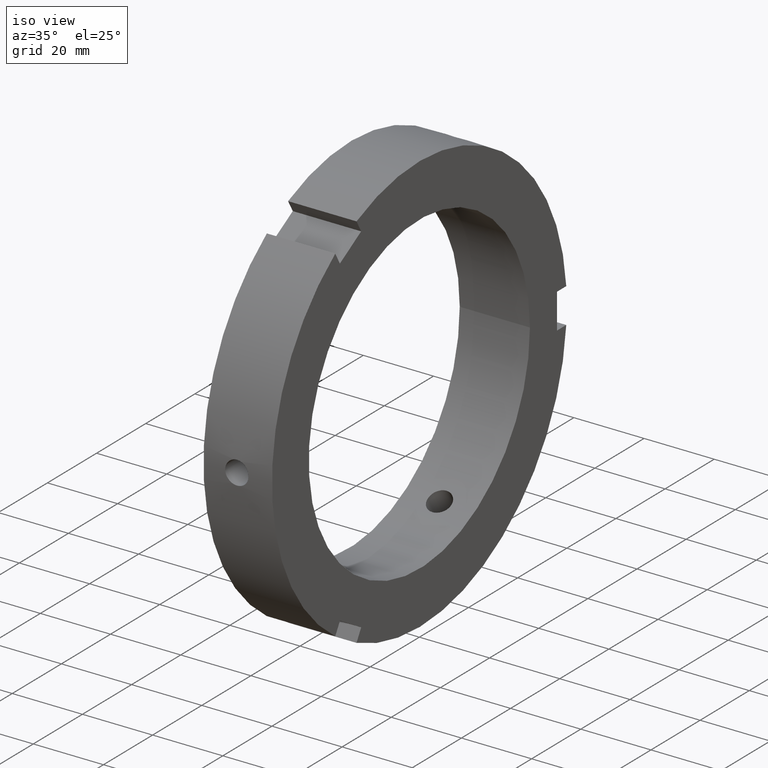
[diagram: clean part render]
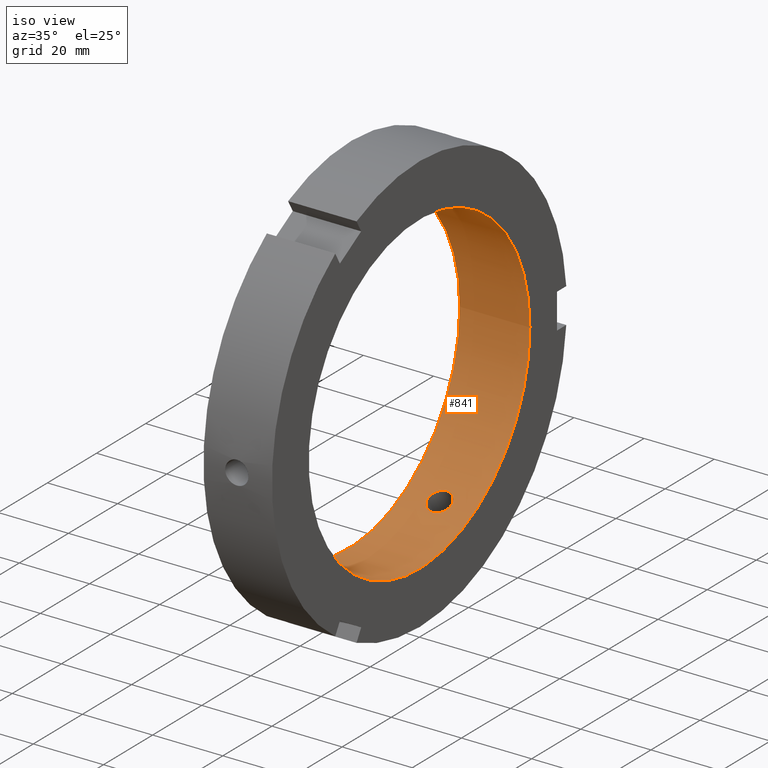
[diagram: same view with one face highlighted and labeled with its STEP entity id]
A machine part, iso view. The second image highlights one B-rep face of the part: STEP entity #841.
In plain terms, the highlighted cylindrical surface (bore or boss wall) has radius 45 mm, axis along (1, 0, 0).
Its self-contained STEP definition (entity closure, byte-faithful):
#216=CARTESIAN_POINT('',(9.999999999999986,25.316786785068718,37.202960996127310));
#217=VERTEX_POINT('',#216);
#218=CARTESIAN_POINT('',(9.999999999999986,25.316786785068714,37.202960996127310));
#219=CARTESIAN_POINT('',(9.582530619987612,25.316786785068714,37.202960996127310));
#220=CARTESIAN_POINT('',(9.137338953354645,25.247718650879069,37.250256448862046));
#221=CARTESIAN_POINT('',(8.318542322400832,24.965543185196580,37.439959347999235));
#222=CARTESIAN_POINT('',(7.944924425362558,24.752275240378047,37.582071919444786));
#223=CARTESIAN_POINT('',(7.354937097566673,24.256757957319159,37.903785464750072));
#224=CARTESIAN_POINT('',(7.099185124343489,23.941405023497900,38.104814219449985));
#225=CARTESIAN_POINT('',(6.759962374178269,23.243883462388460,38.534265566933684));
#226=CARTESIAN_POINT('',(6.676499999999985,22.861538723811350,38.762408690784767));
#227=CARTESIAN_POINT('',(6.676499999999987,22.138461276188657,39.179877649814678));
#228=CARTESIAN_POINT('',(6.759962374178272,21.749711165946319,39.396926344500230));
#229=CARTESIAN_POINT('',(7.099185124343497,21.029034608781267,39.786272062366528));
#230=CARTESIAN_POINT('',(7.354937097566674,20.697262133409367,39.958861336863748));
#231=CARTESIAN_POINT('',(7.944924425362556,20.170891388903989,40.227135119354344));
#232=CARTESIAN_POINT('',(8.318542322400830,19.941184319425751,40.340774291657311));
#233=CARTESIAN_POINT('',(9.137338953354643,19.635809056760142,40.490293963694455));
#234=CARTESIAN_POINT('',(9.582530619987614,19.560315926113560,40.526460996127312));
#235=CARTESIAN_POINT('',(10.417469380012360,19.560315926113560,40.526460996127312));
#236=CARTESIAN_POINT('',(10.862661046645330,19.635809056760138,40.490293963694455));
#237=CARTESIAN_POINT('',(11.681457677599143,19.941184319425751,40.340774291657311));
#238=CARTESIAN_POINT('',(12.055075574637417,20.170891388903989,40.227135119354344));
#239=CARTESIAN_POINT('',(12.645062902433303,20.697262133409367,39.958861336863748));
#240=CARTESIAN_POINT('',(12.900814875656474,21.029034608781274,39.786272062366528));
#241=CARTESIAN_POINT('',(13.240037625821699,21.749711165946319,39.396926344500230));
#242=CARTESIAN_POINT('',(13.323499999999985,22.138461276188654,39.179877649814678));
#243=CARTESIAN_POINT('',(13.323499999999985,22.861538723811350,38.762408690784767));
#244=CARTESIAN_POINT('',(13.240037625821707,23.243883462388460,38.534265566933676));
#245=CARTESIAN_POINT('',(12.900814875656486,23.941405023497900,38.104814219449985));
#246=CARTESIAN_POINT('',(12.645062902433303,24.256757957319159,37.903785464750072));
#247=CARTESIAN_POINT('',(12.055075574637417,24.752275240378047,37.582071919444786));
#248=CARTESIAN_POINT('',(11.681457677599145,24.965543185196580,37.439959347999235));
#249=CARTESIAN_POINT('',(10.862661046645330,25.247718650879069,37.250256448862046));
#250=CARTESIAN_POINT('',(10.417469380012360,25.316786785068714,37.202960996127310));
#251=CARTESIAN_POINT('',(9.999999999999986,25.316786785068714,37.202960996127310));
#252=B_SPLINE_CURVE_WITH_KNOTS('',3,(#218,#219,#220,#221,#222,#223,#224,#225,#226,#227,#228,#229,#230,#231,#232,#233,#234,#235,#236,#237,#238,#239,#240,#241,#242,#243,#244,#245,#246,#247,#248,#249,#250,#251),.UNSPECIFIED.,.T.,.U.,(4,2,2,2,2,2,2,2,2,2,2,2,2,2,2,2,4),(0.0,0.125240814003712,0.250481628007424,0.375722315716397,0.500963003425370,0.626203691134343,0.751444378843316,0.876685192847028,1.001926006850740,1.127166820854451,1.252407634858163,1.377648322567136,1.502889010276109,1.628129697985082,1.753370385694055,1.878611199697767,2.003852013701479),.UNSPECIFIED.);
#253=EDGE_CURVE('',#217,#217,#252,.T.);
#406=CARTESIAN_POINT('',(9.999999999999986,19.560315926113525,-40.526460996127327));
#407=VERTEX_POINT('',#406);
#408=CARTESIAN_POINT('',(9.999999999999986,19.560315926113521,-40.526460996127334));
#409=CARTESIAN_POINT('',(9.582530619987612,19.560315926113521,-40.526460996127334));
#410=CARTESIAN_POINT('',(9.137338953354648,19.635809056760113,-40.490293963694477));
#411=CARTESIAN_POINT('',(8.318542322400832,19.941184319425727,-40.340774291657333));
#412=CARTESIAN_POINT('',(7.944924425362558,20.170891388903975,-40.227135119354365));
#413=CARTESIAN_POINT('',(7.354937097566676,20.697262133409353,-39.958861336863770));
#414=CARTESIAN_POINT('',(7.099185124343487,21.029034608781249,-39.786272062366542));
#415=CARTESIAN_POINT('',(6.759962374178268,21.749711165946302,-39.396926344500244));
#416=CARTESIAN_POINT('',(6.676499999999987,22.138461276188643,-39.179877649814699));
#417=CARTESIAN_POINT('',(6.676499999999987,22.861538723811343,-38.762408690784795));
#418=CARTESIAN_POINT('',(6.759962374178269,23.243883462388442,-38.534265566933698));
#419=CARTESIAN_POINT('',(7.099185124343494,23.941405023497879,-38.104814219449999));
#420=CARTESIAN_POINT('',(7.354937097566674,24.256757957319145,-37.903785464750108));
#421=CARTESIAN_POINT('',(7.944924425362561,24.752275240378037,-37.582071919444822));
#422=CARTESIAN_POINT('',(8.318542322400836,24.965543185196559,-37.439959347999263));
#423=CARTESIAN_POINT('',(9.137338953354652,25.247718650879047,-37.250256448862075));
#424=CARTESIAN_POINT('',(9.582530619987612,25.316786785068700,-37.202960996127324));
#425=CARTESIAN_POINT('',(10.417469380012360,25.316786785068700,-37.202960996127324));
#426=CARTESIAN_POINT('',(10.862661046645323,25.247718650879044,-37.250256448862075));
#427=CARTESIAN_POINT('',(11.681457677599138,24.965543185196552,-37.439959347999263));
#428=CARTESIAN_POINT('',(12.055075574637414,24.752275240378037,-37.582071919444822));
#429=CARTESIAN_POINT('',(12.645062902433297,24.256757957319145,-37.903785464750108));
#430=CARTESIAN_POINT('',(12.900814875656479,23.941405023497879,-38.104814219449999));
#431=CARTESIAN_POINT('',(13.240037625821703,23.243883462388442,-38.534265566933698));
#432=CARTESIAN_POINT('',(13.323499999999985,22.861538723811336,-38.762408690784795));
#433=CARTESIAN_POINT('',(13.323499999999985,22.138461276188647,-39.179877649814699));
#434=CARTESIAN_POINT('',(13.240037625821707,21.749711165946302,-39.396926344500244));
#435=CARTESIAN_POINT('',(12.900814875656488,21.029034608781249,-39.786272062366542));
#436=CARTESIAN_POINT('',(12.645062902433299,20.697262133409353,-39.958861336863770));
#437=CARTESIAN_POINT('',(12.055075574637417,20.170891388903975,-40.227135119354365));
#438=CARTESIAN_POINT('',(11.681457677599141,19.941184319425723,-40.340774291657333));
#439=CARTESIAN_POINT('',(10.862661046645325,19.635809056760113,-40.490293963694477));
#440=CARTESIAN_POINT('',(10.417469380012358,19.560315926113518,-40.526460996127334));
#441=CARTESIAN_POINT('',(9.999999999999984,19.560315926113518,-40.526460996127334));
#442=B_SPLINE_CURVE_WITH_KNOTS('',3,(#408,#409,#410,#411,#412,#413,#414,#415,#416,#417,#418,#419,#420,#421,#422,#423,#424,#425,#426,#427,#428,#429,#430,#431,#432,#433,#434,#435,#436,#437,#438,#439,#440,#441),.UNSPECIFIED.,.T.,.U.,(4,2,2,2,2,2,2,2,2,2,2,2,2,2,2,2,4),(0.0,0.125240814003712,0.250481628007424,0.375722315716397,0.500963003425370,0.626203691134343,0.751444378843316,0.876685192847028,1.001926006850741,1.127166820854453,1.252407634858165,1.377648322567138,1.502889010276111,1.628129697985083,1.753370385694056,1.878611199697768,2.003852013701481),.UNSPECIFIED.);
#443=EDGE_CURVE('',#407,#407,#442,.T.);
#508=CARTESIAN_POINT('',(19.999999999999993,45.0,0.0));
#509=VERTEX_POINT('',#508);
#510=CARTESIAN_POINT('',(19.999999999999993,0.0,0.0));
#511=DIRECTION('',(1.0,0.0,0.0));
#512=DIRECTION('',(0.0,1.0,0.0));
#513=AXIS2_PLACEMENT_3D('',#510,#511,#512);
#514=CIRCLE('',#513,45.0);
#515=EDGE_CURVE('',#509,#509,#514,.T.);
#643=CARTESIAN_POINT('',(9.999999999999986,-44.877102711182232,3.323500000000000));
#644=VERTEX_POINT('',#643);
#645=CARTESIAN_POINT('',(9.999999999999986,-44.877102711182239,3.323500000000000));
#646=CARTESIAN_POINT('',(9.582530619987612,-44.877102711182239,3.323500000000000));
#647=CARTESIAN_POINT('',(9.137338953354647,-44.883527707639182,3.240037514832411));
#648=CARTESIAN_POINT('',(8.318542322400832,-44.906727504622303,2.900814943658070));
#649=CARTESIAN_POINT('',(7.944924425362558,-44.923166629282029,2.645063199909553));
#650=CARTESIAN_POINT('',(7.354937097566674,-44.954020090728513,2.055075872113669));
#651=CARTESIAN_POINT('',(7.099185124343493,-44.970439632279138,1.681457842916545));
#652=CARTESIAN_POINT('',(6.759962374178269,-44.993594628334755,0.862660777566548));
#653=CARTESIAN_POINT('',(6.676499999999987,-45.0,0.417468959029910));
#654=CARTESIAN_POINT('',(6.676499999999987,-45.0,-0.417468959029910));
#655=CARTESIAN_POINT('',(6.759962374178270,-44.993594628334755,-0.862660777566549));
#656=CARTESIAN_POINT('',(7.099185124343493,-44.970439632279138,-1.681457842916545));
#657=CARTESIAN_POINT('',(7.354937097566674,-44.954020090728513,-2.055075872113669));
#658=CARTESIAN_POINT('',(7.944924425362558,-44.923166629282029,-2.645063199909553));
#659=CARTESIAN_POINT('',(8.318542322400832,-44.906727504622303,-2.900814943658070));
#660=CARTESIAN_POINT('',(9.137338953354647,-44.883527707639182,-3.240037514832411));
#661=CARTESIAN_POINT('',(9.582530619987614,-44.877102711182239,-3.323500000000000));
#662=CARTESIAN_POINT('',(10.417469380012360,-44.877102711182239,-3.323500000000000));
#663=CARTESIAN_POINT('',(10.862661046645323,-44.883527707639182,-3.240037514832410));
#664=CARTESIAN_POINT('',(11.681457677599138,-44.906727504622303,-2.900814943658071));
#665=CARTESIAN_POINT('',(12.055075574637414,-44.923166629282029,-2.645063199909554));
#666=CARTESIAN_POINT('',(12.645062902433297,-44.954020090728513,-2.055075872113669));
#667=CARTESIAN_POINT('',(12.900814875656481,-44.970439632279138,-1.681457842916546));
#668=CARTESIAN_POINT('',(13.240037625821707,-44.993594628334755,-0.862660777566549));
#669=CARTESIAN_POINT('',(13.323499999999985,-45.0,-0.417468959029911));
#670=CARTESIAN_POINT('',(13.323499999999985,-45.0,0.417468959029910));
#671=CARTESIAN_POINT('',(13.240037625821707,-44.993594628334755,0.862660777566548));
#672=CARTESIAN_POINT('',(12.900814875656481,-44.970439632279138,1.681457842916545));
#673=CARTESIAN_POINT('',(12.645062902433303,-44.954020090728513,2.055075872113669));
#674=CARTESIAN_POINT('',(12.055075574637417,-44.923166629282029,2.645063199909553));
#675=CARTESIAN_POINT('',(11.681457677599145,-44.906727504622303,2.900814943658069));
#676=CARTESIAN_POINT('',(10.862661046645330,-44.883527707639182,3.240037514832410));
#677=CARTESIAN_POINT('',(10.417469380012360,-44.877102711182239,3.323500000000000));
#678=CARTESIAN_POINT('',(9.999999999999986,-44.877102711182239,3.323500000000000));
#679=B_SPLINE_CURVE_WITH_KNOTS('',3,(#645,#646,#647,#648,#649,#650,#651,#652,#653,#654,#655,#656,#657,#658,#659,#660,#661,#662,#663,#664,#665,#666,#667,#668,#669,#670,#671,#672,#673,#674,#675,#676,#677,#678),.UNSPECIFIED.,.T.,.U.,(4,2,2,2,2,2,2,2,2,2,2,2,2,2,2,2,4),(0.0,0.125240814003712,0.250481628007424,0.375722315716397,0.500963003425370,0.626203691134343,0.751444378843316,0.876685192847028,1.001926006850740,1.127166820854452,1.252407634858164,1.377648322567137,1.502889010276110,1.628129697985083,1.753370385694056,1.878611199697768,2.003852013701480),.UNSPECIFIED.);
#680=EDGE_CURVE('',#644,#644,#679,.T.);
#766=CARTESIAN_POINT('',(-1.288320E-014,45.0,0.0));
#767=VERTEX_POINT('',#766);
#768=CARTESIAN_POINT('',(-1.288466E-014,0.0,0.0));
#769=DIRECTION('',(1.0,0.0,0.0));
#770=DIRECTION('',(0.0,1.0,0.0));
#771=AXIS2_PLACEMENT_3D('',#768,#769,#770);
#772=CIRCLE('',#771,45.0);
#773=EDGE_CURVE('',#767,#767,#772,.T.);
#821=CARTESIAN_POINT('',(9.999999999999989,0.0,0.0));
#822=DIRECTION('',(1.0,0.0,0.0));
#823=DIRECTION('',(0.0,1.0,0.0));
#824=AXIS2_PLACEMENT_3D('',#821,#822,#823);
#825=CYLINDRICAL_SURFACE('',#824,45.0);
#826=ORIENTED_EDGE('',*,*,#773,.F.);
#827=EDGE_LOOP('',(#826));
#828=FACE_OUTER_BOUND('',#827,.T.);
#829=ORIENTED_EDGE('',*,*,#253,.T.);
#830=EDGE_LOOP('',(#829));
#831=FACE_BOUND('',#830,.T.);
#832=ORIENTED_EDGE('',*,*,#443,.T.);
#833=EDGE_LOOP('',(#832));
#834=FACE_BOUND('',#833,.T.);
#835=ORIENTED_EDGE('',*,*,#680,.T.);
#836=EDGE_LOOP('',(#835));
#837=FACE_BOUND('',#836,.T.);
#838=ORIENTED_EDGE('',*,*,#515,.T.);
#839=EDGE_LOOP('',(#838));
#840=FACE_BOUND('',#839,.T.);
#841=ADVANCED_FACE('',(#828,#831,#834,#837,#840),#825,.F.);